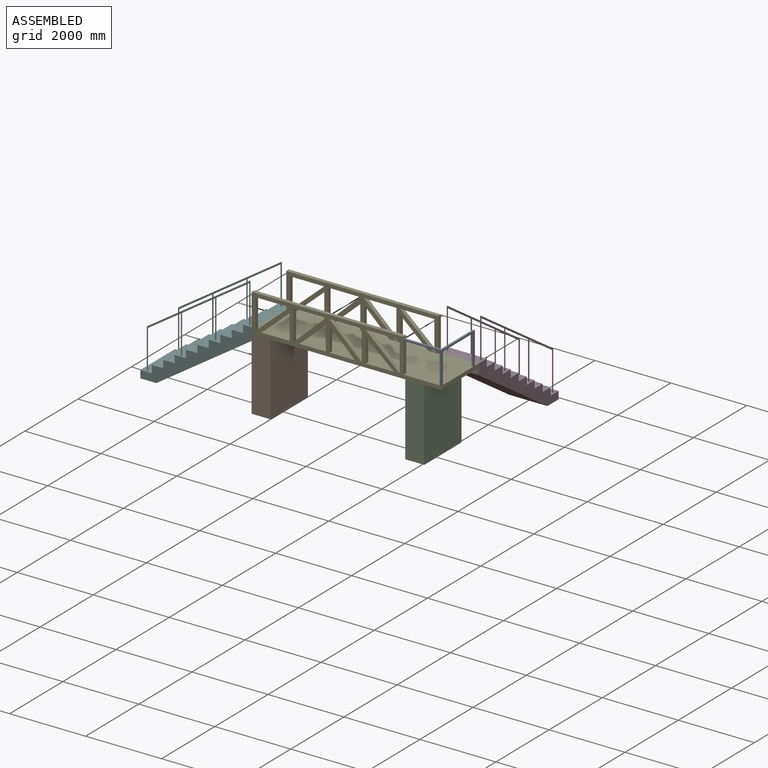
[diagram: assembled view]
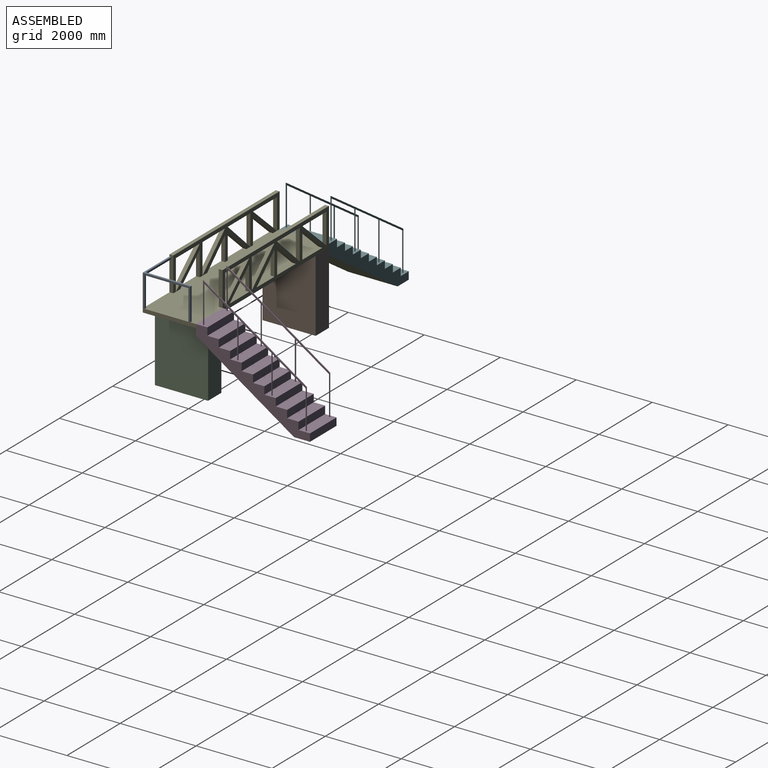
[diagram: assembled view, second angle]
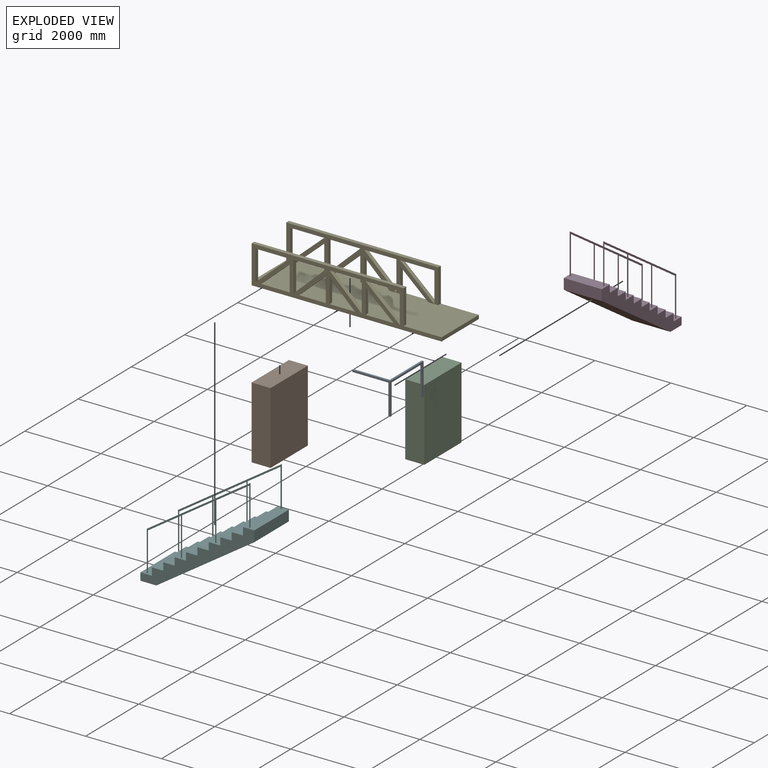
[diagram: exploded view]
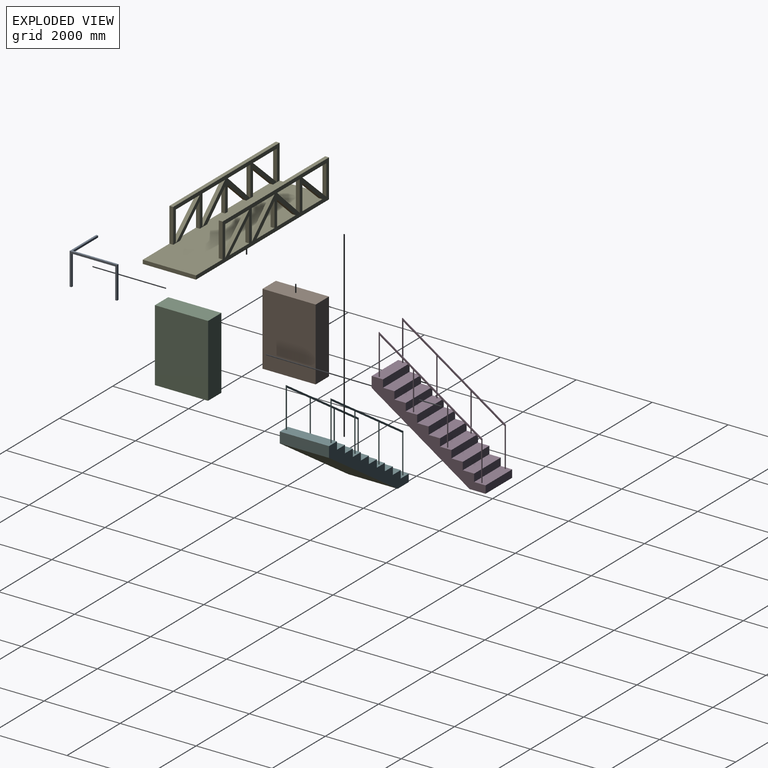
[diagram: exploded view, second angle]
ASSEMBLY  parts=6 mates=5
PART A: 14 faces, bbox 1000x1250x850 mm
  f0: plane 950x50mm, normal (0,0,-1), area 47500mm2, adj f2,f4,f6,f13
  f1: plane 1150x50mm, normal (0,0,-1), area 57500mm2, adj f5,f7,f10,f12
  f2: plane 950x50mm, normal (0,1,0), area 47500mm2, adj f0,f3,f6,f7
  f3: plane 1250x1000mm, normal (0,0,1), area 110000mm2, adj f2,f4,f5,f6,f7,f8
  f4: plane 1000x850mm, normal (0,-1,0), area 90000mm2, adj f0,f3,f5,f6,f11,f13
  f5: plane 1250x850mm, normal (1,0,0), area 142500mm2, adj f1,f3,f4,f8,f9,f10,f11,f12
  f6: plane 50x50mm, normal (-1,0,0), area 2500mm2, adj f0,f2,f3,f4
  f7: plane 1200x850mm, normal (-1,0,0), area 100000mm2, adj f1,f2,f3,f8,f9,f10
  f8: plane 850x50mm, normal (0,1,0), area 42500mm2, adj f3,f5,f7,f9
  f9: plane 50x50mm, normal (0,0,-1), area 2500mm2, adj f5,f7,f8,f10
  f10: plane 800x50mm, normal (0,-1,0), area 40000mm2, adj f1,f5,f7,f9
  f11: plane 50x50mm, normal (0,0,-1), area 2500mm2, adj f4,f5,f12,f13
  f12: plane 800x50mm, normal (0,1,0), area 40000mm2, adj f1,f5,f11,f13
  f13: plane 800x50mm, normal (-1,0,0), area 40000mm2, adj f0,f4,f11,f12
PART B: 6 faces, bbox 500x1400x1900 mm
  f0: plane 1900x500mm, normal (0,1,0), area 950000mm2, adj f1,f3,f4,f5
  f1: plane 1900x1400mm, normal (1,0,0), area 2660000mm2, adj f0,f2,f4,f5
  f2: plane 1900x500mm, normal (0,-1,0), area 950000mm2, adj f1,f3,f4,f5
  f3: plane 1900x1400mm, normal (-1,0,0), area 2660000mm2, adj f0,f2,f4,f5
  f4: plane 1400x500mm, normal (0,0,-1), area 700000mm2, adj f0,f1,f2,f3
  f5: plane 1400x500mm, normal (0,0,1), area 700000mm2, adj f0,f1,f2,f3
PART C: same geometry as B
PART D: 61 faces, bbox 1000x3000x3063.5 mm
  f0: plane 1000x300mm, normal (0,0,1), area 299200mm2, adj f1,f22,f23,f24,f25,f26,f27,f42
  f1: plane 1000x279.98mm, normal (0,-1,0), area 279982.8mm2, adj f0,f2,f23,f42
  f2: plane 2580.03x1720.02mm, normal (0,-0.55,-0.83), area 3100805.2mm2, adj f1,f3,f23,f42
  f3: plane 1000x419.97mm, normal (0,0,-1), area 419974.2mm2, adj f2,f4,f23,f42
  f4: plane 1000x200.17mm, normal (0,1,0), area 200167.7mm2, adj f3,f5,f23,f42
  f5: plane 1000x300mm, normal (0,0,1), area 299200mm2, adj f4,f6,f23,f25,f27,f32,f33,f42
  f6: plane 1000x200mm, normal (0,1,0), area 200000mm2, adj f5,f7,f23,f42
  f7: plane 1000x300mm, normal (0,0,1), area 300000mm2, adj f6,f8,f23,f42
  f8: plane 1000x200mm, normal (0,1,0), area 200000mm2, adj f7,f9,f23,f42
  f9: plane 1000x300mm, normal (0,0,1), area 300000mm2, adj f8,f10,f23,f42
  f10: plane 1000x200mm, normal (0,1,0), area 200000mm2, adj f9,f11,f23,f42
  f11: plane 1000x300mm, normal (0,0,1), area 299200mm2, adj f10,f12,f23,f25,f27,f30,f31,f42
  f12: plane 1000x200mm, normal (0,1,0), area 200000mm2, adj f11,f13,f23,f42
  f13: plane 1000x300mm, normal (0,0,1), area 300000mm2, adj f12,f14,f23,f42
  f14: plane 1000x200mm, normal (0,1,0), area 200000mm2, adj f13,f15,f23,f42
  f15: plane 1000x300mm, normal (0,0,1), area 300000mm2, adj f14,f16,f23,f42
  f16: plane 1000x200mm, normal (0,1,0), area 200000mm2, adj f15,f17,f23,f42
  f17: plane 1000x300mm, normal (0,0,1), area 299200mm2, adj f16,f18,f23,f25,f27,f28,f29,f42
  f18: plane 1000x200mm, normal (0,1,0), area 200000mm2, adj f17,f19,f23,f42
  f19: plane 1000x300mm, normal (0,0,1), area 300000mm2, adj f18,f20,f23,f42
  f20: plane 1000x200mm, normal (0,1,0), area 200000mm2, adj f19,f21,f23,f42
  f21: plane 1000x300mm, normal (0,0,1), area 300000mm2, adj f20,f22,f23,f42
  f22: plane 1000x200mm, normal (0,1,0), area 200000mm2, adj f0,f21,f23,f42
  f23: plane 3000x2000.17mm, normal (1,0,0), area 1081190.7mm2, adj f0,f1,f2,f3,f4,f5,f6,f7
  f24: plane 1063.33x20mm, normal (0,-1,0), area 21266.6mm2, adj f0,f25,f27,f40
  f25: plane 2863.33x2720mm, normal (1,0,0), area 216512.7mm2, adj f0,f5,f11,f17,f24,f26,f28,f29
  f26: plane 1000x20mm, normal (0,1,0), area 20000mm2, adj f0,f25,f27,f41
  f27: plane 2863.33x2720mm, normal (-1,0,0), area 216512.7mm2, adj f0,f5,f11,f17,f24,f26,f28,f29
  f28: plane 1013.33x20mm, normal (0,-1,0), area 20266.6mm2, adj f17,f25,f27,f41
  f29: plane 1000x20mm, normal (0,1,0), area 20000mm2, adj f17,f25,f27,f34
  f30: plane 1013.34x20mm, normal (0,-1,0), area 20266.7mm2, adj f11,f25,f27,f36
  f31: plane 1000x20mm, normal (0,1,0), area 20000mm2, adj f11,f25,f27,f37
  f32: plane 1013.33x20mm, normal (0,-1,0), area 20266.7mm2, adj f5,f25,f27,f37
  f33: plane 1050x20mm, normal (0,1,0), area 21000mm2, adj f5,f25,f27,f38
  f34: plane 20x7.87mm, normal (0,0,-1), area 157.3mm2, adj f25,f27,f29,f35
  f35: plane 20x5.25mm, normal (0,-1,0), area 104.9mm2, adj f25,f27,f34,f36
  f36: plane 871.88x581.42mm, normal (0,-0.55,-0.83), area 20959.3mm2, adj f25,f27,f30,f35
  f37: plane 880x586.67mm, normal (0,-0.55,-0.83), area 21152.6mm2, adj f25,f27,f31,f32
  f38: plane 900x600mm, normal (0,0.55,0.83), area 21633.3mm2, adj f25,f27,f33,f39
  f39: plane 899.75x600mm, normal (0,0.55,0.83), area 21629.1mm2, adj f25,f27,f38,f40
  f40: plane 920.25x613.33mm, normal (0,0.55,0.83), area 22118.2mm2, adj f24,f25,f27,f39
  f41: plane 880.25x586.67mm, normal (0,-0.55,-0.83), area 21156.8mm2, adj f25,f26,f27,f28
  f42: plane 3000x2000.17mm, normal (-1,0,0), area 1081190.7mm2, adj f0,f1,f2,f3,f4,f5,f6,f7
  f43: plane 1063.33x20mm, normal (0,-1,0), area 21266.6mm2, adj f0,f44,f46,f59
  f44: plane 2863.33x2720mm, normal (-1,0,0), area 216512.7mm2, adj f0,f5,f11,f17,f43,f45,f47,f48
  f45: plane 1000x20mm, normal (0,1,0), area 20000mm2, adj f0,f44,f46,f60
  f46: plane 2863.33x2720mm, normal (1,0,0), area 216512.7mm2, adj f0,f5,f11,f17,f43,f45,f47,f48
  f47: plane 1013.33x20mm, normal (0,-1,0), area 20266.6mm2, adj f17,f44,f46,f60
  f48: plane 1000x20mm, normal (0,1,0), area 20000mm2, adj f17,f44,f46,f53
  f49: plane 1013.34x20mm, normal (0,-1,0), area 20266.7mm2, adj f11,f44,f46,f55
  f50: plane 1000x20mm, normal (0,1,0), area 20000mm2, adj f11,f44,f46,f56
  f51: plane 1013.33x20mm, normal (0,-1,0), area 20266.7mm2, adj f5,f44,f46,f56
  f52: plane 1050x20mm, normal (0,1,0), area 21000mm2, adj f5,f44,f46,f57
  f53: plane 20x7.87mm, normal (0,0,-1), area 157.3mm2, adj f44,f46,f48,f54
  f54: plane 20x5.25mm, normal (0,-1,0), area 104.9mm2, adj f44,f46,f53,f55
  f55: plane 871.88x581.42mm, normal (0,-0.55,-0.83), area 20959.3mm2, adj f44,f46,f49,f54
  f56: plane 880x586.67mm, normal (0,-0.55,-0.83), area 21152.6mm2, adj f44,f46,f50,f51
  f57: plane 900x600mm, normal (0,0.55,0.83), area 21633.3mm2, adj f44,f46,f52,f58
  f58: plane 899.75x600mm, normal (0,0.55,0.83), area 21629.1mm2, adj f44,f46,f57,f59
  f59: plane 920.25x613.33mm, normal (0,0.55,0.83), area 22118.2mm2, adj f43,f44,f46,f58
  f60: plane 880.25x586.67mm, normal (0,-0.55,-0.83), area 21156.8mm2, adj f44,f45,f46,f47
PART E: 52 faces, bbox 5000x1400x1000 mm
  f0: plane 900x100mm, normal (1,0,0), area 90000mm2, adj f2,f3,f21,f27
  f1: plane 900x100mm, normal (1,0,0), area 90000mm2, adj f21,f28,f29,f50
  f2: plane 4000x900mm, normal (0,1,0), area 1267987.3mm2, adj f0,f3,f4,f6,f7,f8,f9,f10
  f3: plane 4000x100mm, normal (0,0,1), area 400000mm2, adj f0,f2,f4,f27
  f4: plane 1400x1000mm, normal (-1,0,0), area 320000mm2, adj f2,f3,f5,f21,f27,f28,f29,f50
  f5: plane 5000x1400mm, normal (0,0,-1), area 7000000mm2, adj f4,f27,f50,f51
  f6: plane 640.03x100mm, normal (1,0,0), area 64003.2mm2, adj f2,f7,f21,f27
  f7: plane 670.59x640.03mm, normal (-0.69,0,-0.72), area 92700.2mm2, adj f2,f6,f21,f27
  f8: plane 900x100mm, normal (0,0,-1), area 90000mm2, adj f2,f9,f22,f27
  f9: plane 800x100mm, normal (-1,0,0), area 80000mm2, adj f2,f8,f22,f27
  f10: plane 850x100mm, normal (0,0,-1), area 85000mm2, adj f2,f11,f23,f27
  f11: plane 800x100mm, normal (-1,0,0), area 80000mm2, adj f2,f10,f23,f27
  f12: plane 702.72x639.95mm, normal (0.67,0,-0.74), area 95044.3mm2, adj f2,f13,f21,f27
  f13: plane 639.95x100mm, normal (-1,0,0), area 63994.6mm2, adj f2,f12,f21,f27
  f14: plane 749.48x666.2mm, normal (0.66,0,-0.75), area 100277.1mm2, adj f2,f15,f21,f27
  f15: plane 666.2x100mm, normal (-1,0,0), area 66620.5mm2, adj f2,f14,f21,f27
  f16: plane 850x800mm, normal (-0.69,0,0.73), area 116726.2mm2, adj f2,f17,f24,f27
  f17: plane 800x100mm, normal (1,0,0), area 80000mm2, adj f2,f16,f24,f27
  f18: plane 800x100mm, normal (1,0,0), area 80000mm2, adj f2,f19,f25,f27
  f19: plane 900x100mm, normal (0,0,-1), area 90000mm2, adj f2,f18,f25,f27
  f20: plane 657.14x100mm, normal (1,0,0), area 65714.4mm2, adj f2,f21,f26,f27
  f21: plane 5000x1400mm, normal (0,0,1), area 6772415mm2, adj f0,f1,f2,f4,f6,f7,f12,f13
  f22: plane 900x800mm, normal (0.66,0,0.75), area 120415.9mm2, adj f2,f8,f9,f27
  f23: plane 850x800mm, normal (0.69,0,0.73), area 116726.2mm2, adj f2,f10,f11,f27
  f24: plane 850x100mm, normal (0,0,-1), area 85000mm2, adj f2,f16,f17,f27
  f25: plane 900x800mm, normal (-0.66,0,0.75), area 120415.9mm2, adj f2,f18,f19,f27
  f26: plane 739.29x657.14mm, normal (-0.66,0,-0.75), area 98913.3mm2, adj f2,f20,f21,f27
  f27: plane 5000x1000mm, normal (0,-1,0), area 1767987.3mm2, adj f0,f3,f4,f5,f6,f7,f8,f9
  f28: plane 4000x900mm, normal (0,-1,0), area 1267987.3mm2, adj f1,f4,f21,f29,f30,f31,f32,f33
  f29: plane 4000x100mm, normal (0,0,1), area 400000mm2, adj f1,f4,f28,f50
  f30: plane 640.03x100mm, normal (1,0,0), area 64003.2mm2, adj f21,f28,f31,f50
  f31: plane 670.59x640.03mm, normal (-0.69,0,-0.72), area 92700.2mm2, adj f21,f28,f30,f50
  f32: plane 900x100mm, normal (0,0,-1), area 90000mm2, adj f28,f33,f45,f50
  f33: plane 800x100mm, normal (-1,0,0), area 80000mm2, adj f28,f32,f45,f50
  f34: plane 850x100mm, normal (0,0,-1), area 85000mm2, adj f28,f35,f46,f50
  f35: plane 800x100mm, normal (-1,0,0), area 80000mm2, adj f28,f34,f46,f50
  f36: plane 702.72x639.95mm, normal (0.67,0,-0.74), area 95044.3mm2, adj f21,f28,f37,f50
  f37: plane 639.95x100mm, normal (-1,0,0), area 63994.6mm2, adj f21,f28,f36,f50
  f38: plane 749.48x666.2mm, normal (0.66,0,-0.75), area 100277.1mm2, adj f21,f28,f39,f50
  f39: plane 666.2x100mm, normal (-1,0,0), area 66620.5mm2, adj f21,f28,f38,f50
  f40: plane 850x800mm, normal (-0.69,0,0.73), area 116726.2mm2, adj f28,f41,f47,f50
  f41: plane 800x100mm, normal (1,0,0), area 80000mm2, adj f28,f40,f47,f50
  f42: plane 800x100mm, normal (1,0,0), area 80000mm2, adj f28,f43,f48,f50
  f43: plane 900x100mm, normal (0,0,-1), area 90000mm2, adj f28,f42,f48,f50
  f44: plane 657.14x100mm, normal (1,0,0), area 65714.4mm2, adj f21,f28,f49,f50
  f45: plane 900x800mm, normal (0.66,0,0.75), area 120415.9mm2, adj f28,f32,f33,f50
  f46: plane 850x800mm, normal (0.69,0,0.73), area 116726.2mm2, adj f28,f34,f35,f50
  f47: plane 850x100mm, normal (0,0,-1), area 85000mm2, adj f28,f40,f41,f50
  f48: plane 900x800mm, normal (-0.66,0,0.75), area 120415.9mm2, adj f28,f42,f43,f50
  f49: plane 739.29x657.14mm, normal (-0.66,0,-0.75), area 98913.3mm2, adj f21,f28,f44,f50
  f50: plane 5000x1000mm, normal (0,1,0), area 1767987.3mm2, adj f1,f4,f5,f21,f29,f30,f31,f32
  f51: plane 1400x100mm, normal (1,0,0), area 140000mm2, adj f5,f21,f27,f50
PART F: 61 faces, bbox 1295.6x3000x3063.5 mm
  f0: plane 1295.61x300mm, normal (0,0,1), area 387882.6mm2, adj f1,f22,f23,f24,f25,f26,f27,f42
  f1: plane 1295.61x279.98mm, normal (0,-1,0), area 362748.1mm2, adj f0,f2,f23,f42
  f2: plane 2580.03x1720.02mm, normal (0,-0.55,-0.83), area 4017430mm2, adj f1,f3,f23,f42
  f3: plane 1295.61x419.97mm, normal (0,0,-1), area 544122.2mm2, adj f2,f4,f23,f42
  f4: plane 1295.61x200.17mm, normal (0,1,0), area 259339mm2, adj f3,f5,f23,f42
  f5: plane 1295.61x300mm, normal (0,0,1), area 387882.6mm2, adj f4,f6,f23,f25,f27,f32,f33,f42
  f6: plane 1295.61x200mm, normal (0,1,0), area 259121.7mm2, adj f5,f7,f23,f42
  f7: plane 1295.61x300mm, normal (0,0,1), area 388682.6mm2, adj f6,f8,f23,f42
  f8: plane 1295.61x200mm, normal (0,1,0), area 259121.7mm2, adj f7,f9,f23,f42
  f9: plane 1295.61x300mm, normal (0,0,1), area 388682.6mm2, adj f8,f10,f23,f42
  f10: plane 1295.61x200mm, normal (0,1,0), area 259121.7mm2, adj f9,f11,f23,f42
  f11: plane 1295.61x300mm, normal (0,0,1), area 387882.6mm2, adj f10,f12,f23,f25,f27,f30,f31,f42
  f12: plane 1295.61x200mm, normal (0,1,0), area 259121.7mm2, adj f11,f13,f23,f42
  f13: plane 1295.61x300mm, normal (0,0,1), area 388682.6mm2, adj f12,f14,f23,f42
  f14: plane 1295.61x200mm, normal (0,1,0), area 259121.7mm2, adj f13,f15,f23,f42
  f15: plane 1295.61x300mm, normal (0,0,1), area 388682.6mm2, adj f14,f16,f23,f42
  f16: plane 1295.61x200mm, normal (0,1,0), area 259121.7mm2, adj f15,f17,f23,f42
  f17: plane 1295.61x300mm, normal (0,0,1), area 387882.6mm2, adj f16,f18,f23,f25,f27,f28,f29,f42
  f18: plane 1295.61x200mm, normal (0,1,0), area 259121.7mm2, adj f17,f19,f23,f42
  f19: plane 1295.61x300mm, normal (0,0,1), area 388682.6mm2, adj f18,f20,f23,f42
  f20: plane 1295.61x200mm, normal (0,1,0), area 259121.7mm2, adj f19,f21,f23,f42
  f21: plane 1295.61x300mm, normal (0,0,1), area 388682.6mm2, adj f20,f22,f23,f42
  f22: plane 1295.61x200mm, normal (0,1,0), area 259121.7mm2, adj f0,f21,f23,f42
  f23: plane 3000x2000.17mm, normal (1,0,0), area 1081190.7mm2, adj f0,f1,f2,f3,f4,f5,f6,f7
  f24: plane 1063.33x20mm, normal (0,-1,0), area 21266.6mm2, adj f0,f25,f27,f40
  f25: plane 2863.33x2720mm, normal (1,0,0), area 216512.7mm2, adj f0,f5,f11,f17,f24,f26,f28,f29
  f26: plane 1000x20mm, normal (0,1,0), area 20000mm2, adj f0,f25,f27,f41
  f27: plane 2863.33x2720mm, normal (-1,0,0), area 216512.7mm2, adj f0,f5,f11,f17,f24,f26,f28,f29
  f28: plane 1013.33x20mm, normal (0,-1,0), area 20266.6mm2, adj f17,f25,f27,f41
  f29: plane 1000x20mm, normal (0,1,0), area 20000mm2, adj f17,f25,f27,f34
  f30: plane 1013.34x20mm, normal (0,-1,0), area 20266.7mm2, adj f11,f25,f27,f36
  f31: plane 1000x20mm, normal (0,1,0), area 20000mm2, adj f11,f25,f27,f37
  f32: plane 1013.33x20mm, normal (0,-1,0), area 20266.7mm2, adj f5,f25,f27,f37
  f33: plane 1050x20mm, normal (0,1,0), area 21000mm2, adj f5,f25,f27,f38
  f34: plane 20x7.87mm, normal (0,0,-1), area 157.3mm2, adj f25,f27,f29,f35
  f35: plane 20x5.25mm, normal (0,-1,0), area 104.9mm2, adj f25,f27,f34,f36
  f36: plane 871.88x581.42mm, normal (0,-0.55,-0.83), area 20959.3mm2, adj f25,f27,f30,f35
  f37: plane 880x586.67mm, normal (0,-0.55,-0.83), area 21152.6mm2, adj f25,f27,f31,f32
  f38: plane 900x600mm, normal (0,0.55,0.83), area 21633.3mm2, adj f25,f27,f33,f39
  f39: plane 899.75x600mm, normal (0,0.55,0.83), area 21629.1mm2, adj f25,f27,f38,f40
  f40: plane 920.25x613.33mm, normal (0,0.55,0.83), area 22118.2mm2, adj f24,f25,f27,f39
  f41: plane 880.25x586.67mm, normal (0,-0.55,-0.83), area 21156.8mm2, adj f25,f26,f27,f28
  f42: plane 3000x2000.17mm, normal (-1,0,0), area 1081190.7mm2, adj f0,f1,f2,f3,f4,f5,f6,f7
  f43: plane 1063.33x20mm, normal (0,-1,0), area 21266.6mm2, adj f0,f44,f46,f59
  f44: plane 2863.33x2720mm, normal (-1,0,0), area 216512.7mm2, adj f0,f5,f11,f17,f43,f45,f47,f48
  f45: plane 1000x20mm, normal (0,1,0), area 20000mm2, adj f0,f44,f46,f60
  f46: plane 2863.33x2720mm, normal (1,0,0), area 216512.7mm2, adj f0,f5,f11,f17,f43,f45,f47,f48
  f47: plane 1013.33x20mm, normal (0,-1,0), area 20266.6mm2, adj f17,f44,f46,f60
  f48: plane 1000x20mm, normal (0,1,0), area 20000mm2, adj f17,f44,f46,f53
  f49: plane 1013.34x20mm, normal (0,-1,0), area 20266.7mm2, adj f11,f44,f46,f55
  f50: plane 1000x20mm, normal (0,1,0), area 20000mm2, adj f11,f44,f46,f56
  f51: plane 1013.33x20mm, normal (0,-1,0), area 20266.7mm2, adj f5,f44,f46,f56
  f52: plane 1050x20mm, normal (0,1,0), area 21000mm2, adj f5,f44,f46,f57
  f53: plane 20x7.87mm, normal (0,0,-1), area 157.3mm2, adj f44,f46,f48,f54
  f54: plane 20x5.25mm, normal (0,-1,0), area 104.9mm2, adj f44,f46,f53,f55
  f55: plane 871.88x581.42mm, normal (0,-0.55,-0.83), area 20959.3mm2, adj f44,f46,f49,f54
  f56: plane 880x586.67mm, normal (0,-0.55,-0.83), area 21152.6mm2, adj f44,f46,f50,f51
  f57: plane 900x600mm, normal (0,0.55,0.83), area 21633.3mm2, adj f44,f46,f52,f58
  f58: plane 899.75x600mm, normal (0,0.55,0.83), area 21629.1mm2, adj f44,f46,f57,f59
  f59: plane 920.25x613.33mm, normal (0,0.55,0.83), area 22118.2mm2, adj f43,f44,f46,f58
  f60: plane 880.25x586.67mm, normal (0,-0.55,-0.83), area 21156.8mm2, adj f44,f45,f46,f47
PLACE A t=(-2400.86,-3109.65,-1261.14)mm
PLACE B t=(-2400.86,-3084.65,-1261.14)mm
PLACE C t=(1644.63,-3084.65,-1261.14)mm
PLACE D t=(-2400.86,-3084.65,-1161.14)mm
PLACE E t=(-2400.86,-3084.65,-1261.14)mm
PLACE F rot(axis=(0,0,1),90deg) t=(-3100.86,-2784.65,-1161.14)mm
MATE fastened A.f4 <-> E.f27  axis (0,-1,0) through (599.14,-3184.65,-1161.14)mm
MATE fastened C.f5 <-> E.f5  axis (0,0,1) through (-105.37,-2484.65,-1261.14)mm
MATE fastened E.f21 <-> F.f0  axis (0,0,1) through (-4400.86,-1784.65,-1161.14)mm
MATE fastened E.f50 <-> D.f1  axis (0,1,0) through (599.14,-1784.65,-1161.14)mm
MATE fastened B.f5 <-> E.f5  axis (0,0,1) through (-4400.86,-3184.65,-1261.14)mm
